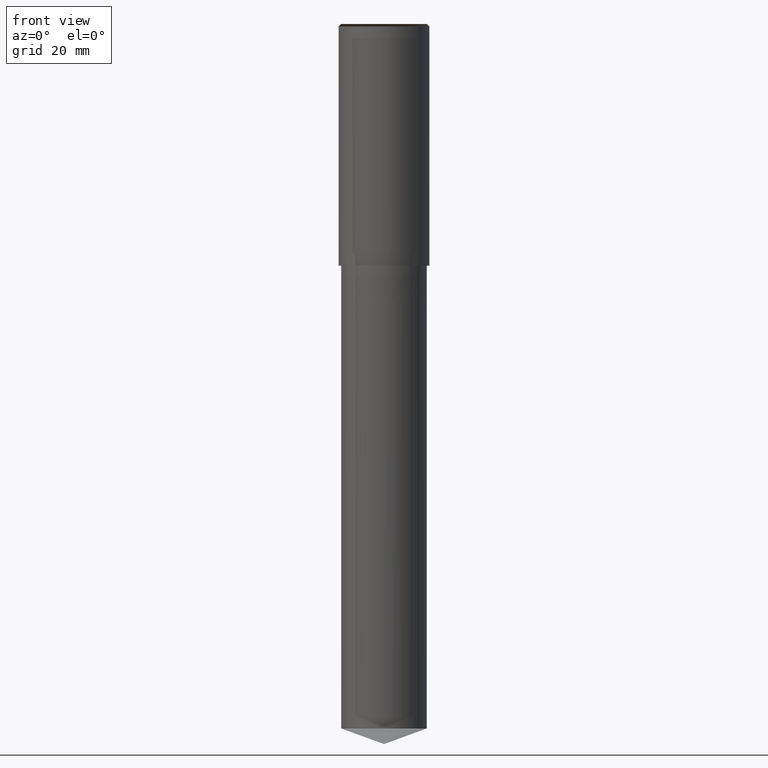
[diagram: clean part render]
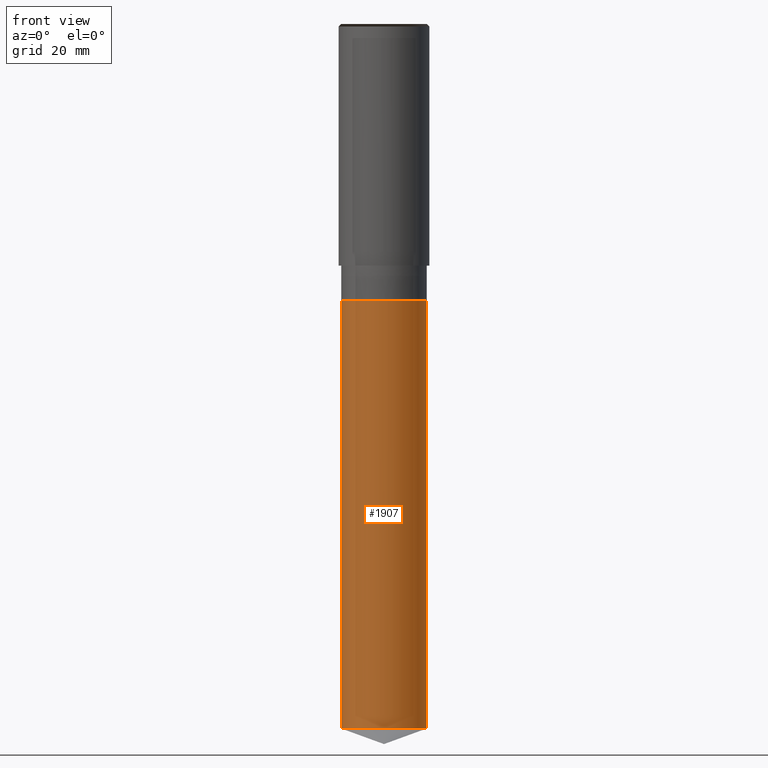
[diagram: same view with one face highlighted and labeled with its STEP entity id]
A machine part, front view. The second image highlights one B-rep face of the part: STEP entity #1907.
In plain terms, the highlighted face is a freeform B-spline surface patch.
Its self-contained STEP definition (entity closure, byte-faithful):
#1757=CARTESIAN_POINT('',(8.5,0.0,-91.906253008737));
#1761=CARTESIAN_POINT('',(-8.5,0.0,-91.906253008737));
#1762=CARTESIAN_POINT('',(8.5,0.0,-7.0));
#1766=CARTESIAN_POINT('',(-8.5,0.0,-7.0));
#1768=CARTESIAN_POINT('',(-8.5,-8.5,-91.906253008737));
#1769=CARTESIAN_POINT('',(0.0,-8.5,-91.906253008737));
#1770=CARTESIAN_POINT('',(8.5,-8.5,-91.906253008737));
#1771=CARTESIAN_POINT('',(-8.5,-8.5,-7.0));
#1772=CARTESIAN_POINT('',(0.0,-8.5,-7.0));
#1773=CARTESIAN_POINT('',(8.5,-8.5,-7.0));
#1888=(
BOUNDED_SURFACE()
B_SPLINE_SURFACE(1,2,(
(#1761,#1768,#1769,#1770,#1757),
(#1766,#1771,#1772,#1773,#1762)
), .UNSPECIFIED.,.F.,.F.,.F.)
B_SPLINE_SURFACE_WITH_KNOTS((2,2),(3,2,3),(
0.0,1.0),(
0.0,0.5,1.0), .UNSPECIFIED.)
GEOMETRIC_REPRESENTATION_ITEM()
RATIONAL_B_SPLINE_SURFACE(((1.0,0.707106781187,1.0,0.707106781187,1.0),
(1.0,0.707106781187,1.0,0.707106781187,1.0)
))
REPRESENTATION_ITEM('')
SURFACE()
);
#1889=(
BOUNDED_CURVE()
B_SPLINE_CURVE(2,(#1757,#1770,#1769,#1768,#1761),.UNSPECIFIED.,.F.,.F.)
B_SPLINE_CURVE_WITH_KNOTS((3,2,3),
(0.0,0.5,1.0),.UNSPECIFIED.)
CURVE()
GEOMETRIC_REPRESENTATION_ITEM()
RATIONAL_B_SPLINE_CURVE((1.0,0.707106781187,1.0,0.707106781187,1.0))
REPRESENTATION_ITEM('')
);
#1890=(
BOUNDED_CURVE()
B_SPLINE_CURVE(1,(#1761,#1766),.UNSPECIFIED.,.F.,.F.)
B_SPLINE_CURVE_WITH_KNOTS((2,2),
(0.0,1.0),.UNSPECIFIED.)
CURVE()
GEOMETRIC_REPRESENTATION_ITEM()
RATIONAL_B_SPLINE_CURVE((1.0,1.0))
REPRESENTATION_ITEM('')
);
#1891=(
BOUNDED_CURVE()
B_SPLINE_CURVE(2,(#1766,#1771,#1772,#1773,#1762),.UNSPECIFIED.,.F.,.F.)
B_SPLINE_CURVE_WITH_KNOTS((3,2,3),
(0.0,0.5,1.0),.UNSPECIFIED.)
CURVE()
GEOMETRIC_REPRESENTATION_ITEM()
RATIONAL_B_SPLINE_CURVE((1.0,0.707106781187,1.0,0.707106781187,1.0))
REPRESENTATION_ITEM('')
);
#1892=(
BOUNDED_CURVE()
B_SPLINE_CURVE(1,(#1762,#1757),.UNSPECIFIED.,.F.,.F.)
B_SPLINE_CURVE_WITH_KNOTS((2,2),
(0.0,1.0),.UNSPECIFIED.)
CURVE()
GEOMETRIC_REPRESENTATION_ITEM()
RATIONAL_B_SPLINE_CURVE((1.0,1.0))
REPRESENTATION_ITEM('')
);
#1893=VERTEX_POINT('',#1757);
#1894=VERTEX_POINT('',#1761);
#1895=VERTEX_POINT('',#1762);
#1896=VERTEX_POINT('',#1766);
#1897=EDGE_CURVE('',#1893,#1894,#1889,.T.);
#1898=EDGE_CURVE('',#1894,#1896,#1890,.T.);
#1899=EDGE_CURVE('',#1896,#1895,#1891,.T.);
#1900=EDGE_CURVE('',#1895,#1893,#1892,.T.);
#1901=ORIENTED_EDGE('',*,*,#1897,.T.);
#1902=ORIENTED_EDGE('',*,*,#1898,.T.);
#1903=ORIENTED_EDGE('',*,*,#1899,.T.);
#1904=ORIENTED_EDGE('',*,*,#1900,.T.);
#1905=EDGE_LOOP('',(#1901,#1902,#1903,#1904));
#1906=FACE_OUTER_BOUND('',#1905,.T.);
#1907=ADVANCED_FACE('',(#1906),#1888,.T.);